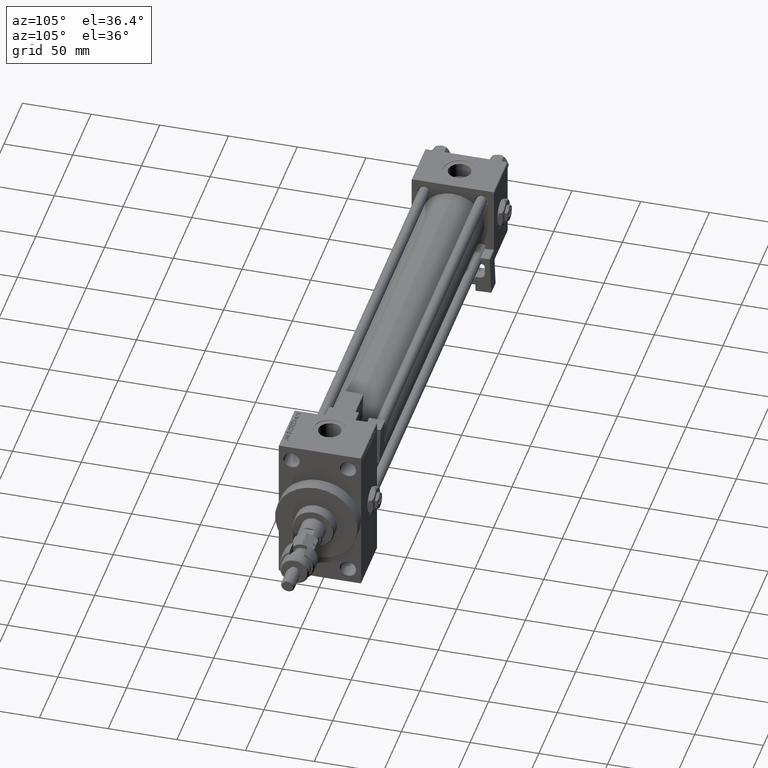
[diagram: clean part render]
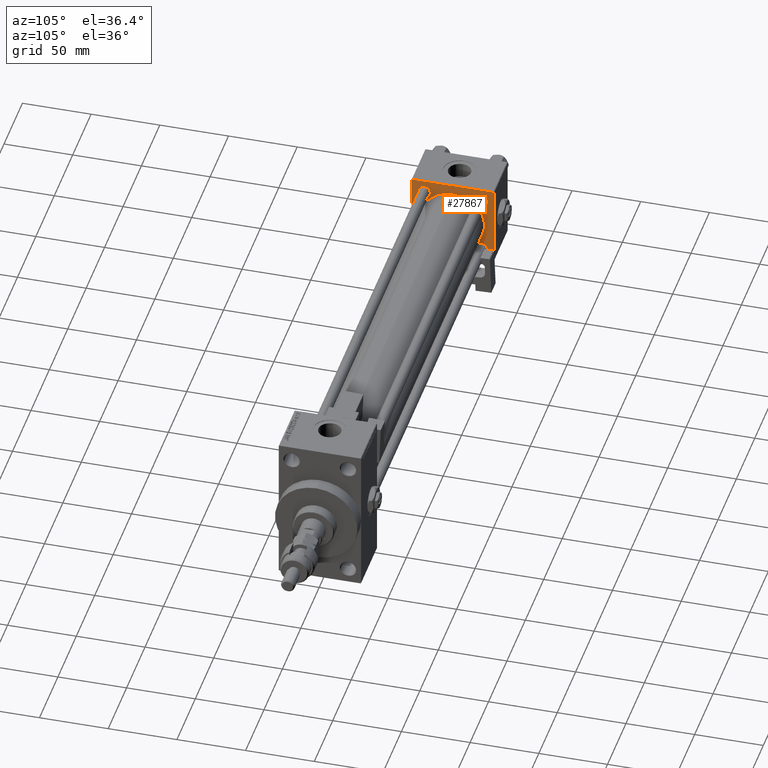
[diagram: same view with one face highlighted and labeled with its STEP entity id]
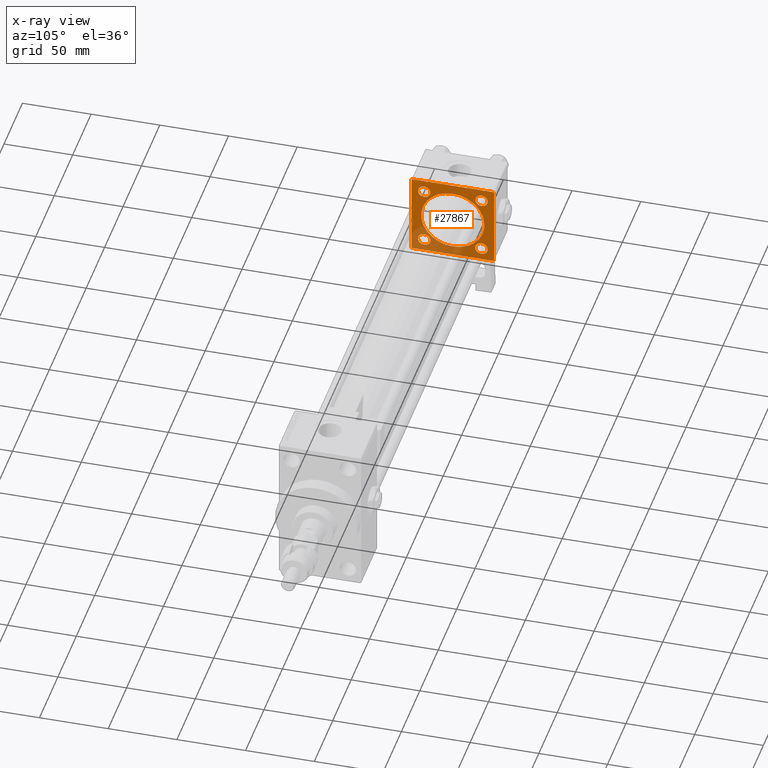
[diagram: x-ray of the same camera — body ghosted, the highlighted face saturated]
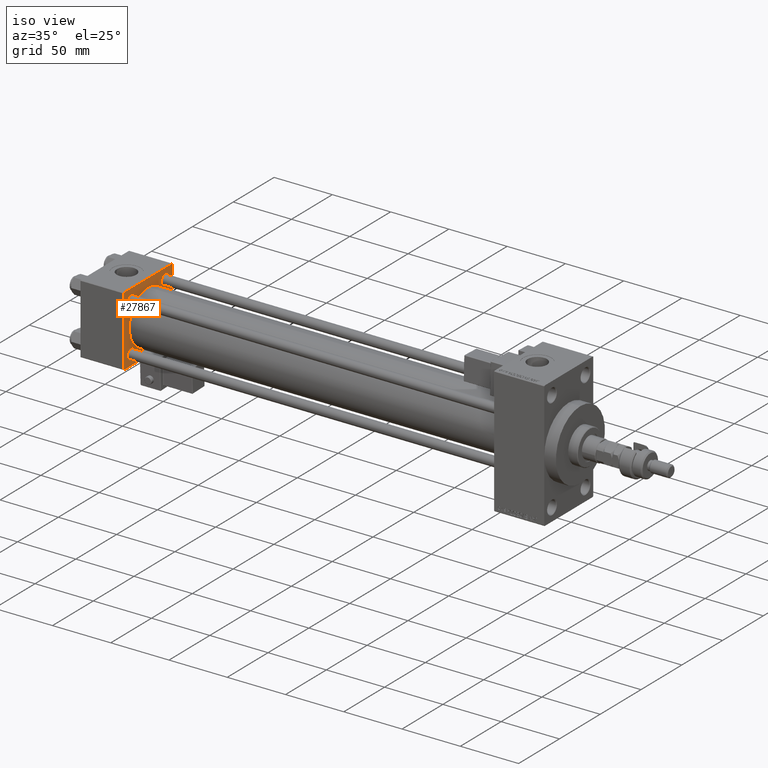
[diagram: same view with one face highlighted and labeled with its STEP entity id]
A machine part, auxiliary view. The second image highlights one B-rep face of the part: STEP entity #27867.
The next image is the same camera in x-ray: the body ghosted, the highlighted face saturated — about 27% of this face is hidden behind the body in this view.
A second angle (iso view) of the same face is appended — the face is thin or edge-on in the first view.
In plain terms, the highlighted planar face has unit normal (-1, 0, 0).
Its self-contained STEP definition (entity closure, byte-faithful):
#390 = DIRECTION ( 'NONE',  ( -1.000000000000000000, 0.000000000000000000, -0.000000000000000000 ) ) ;
#536 = CIRCLE ( 'NONE', #49642, 4.500000000000059508 ) ;
#635 = CARTESIAN_POINT ( 'NONE',  ( 37.00000000000000000, 29.99999999999999289, 30.00000000000000000 ) ) ;
#659 = CARTESIAN_POINT ( 'NONE',  ( 36.99999999999997868, -2.602085213965210642E-15, 0.000000000000000000 ) ) ;
#694 = AXIS2_PLACEMENT_3D ( 'NONE', #52681, #22477, #10665 ) ;
#780 = VERTEX_POINT ( 'NONE', #21526 ) ;
#1016 = VERTEX_POINT ( 'NONE', #32437 ) ;
#1228 = CIRCLE ( 'NONE', #2090, 4.500000000000059508 ) ;
#1545 = DIRECTION ( 'NONE',  ( 0.000000000000000000, -0.7071067811865474617, 0.7071067811865474617 ) ) ;
#2090 = AXIS2_PLACEMENT_3D ( 'NONE', #47526, #43944, #40091 ) ;
#2264 = CIRCLE ( 'NONE', #40823, 4.500000000000059508 ) ;
#2311 = CARTESIAN_POINT ( 'NONE',  ( 37.00000000000000000, 20.84999999999999787, -25.35000000000005826 ) ) ;
#2501 = DIRECTION ( 'NONE',  ( 0.000000000000000000, 0.000000000000000000, -1.000000000000000000 ) ) ;
#2979 = ORIENTED_EDGE ( 'NONE', *, *, #39996, .F. ) ;
#3033 = CIRCLE ( 'NONE', #35466, 4.500000000000059508 ) ;
#3519 = LINE ( 'NONE', #40871, #27728 ) ;
#4638 = CARTESIAN_POINT ( 'NONE',  ( 37.00000000000000000, 29.49999999999999289, 30.00000000000000000 ) ) ;
#5044 = EDGE_LOOP ( 'NONE', ( #52062, #13350 ) ) ;
#5068 = CIRCLE ( 'NONE', #694, 4.500000000000059508 ) ;
#5427 = EDGE_LOOP ( 'NONE', ( #31032, #26754, #53563, #40366, #11191, #44557, #14550, #25297 ) ) ;
#5524 = CARTESIAN_POINT ( 'NONE',  ( 37.00000000000000000, -20.84999999999999076, 25.35000000000006182 ) ) ;
#5798 = LINE ( 'NONE', #52476, #9997 ) ;
#6354 = DIRECTION ( 'NONE',  ( -0.000000000000000000, 0.000000000000000000, 1.000000000000000000 ) ) ;
#7024 = DIRECTION ( 'NONE',  ( 0.000000000000000000, 0.000000000000000000, 1.000000000000000000 ) ) ;
#7717 = DIRECTION ( 'NONE',  ( 0.000000000000000000, -1.000000000000000000, -1.156482317317871725E-16 ) ) ;
#8628 = ORIENTED_EDGE ( 'NONE', *, *, #16217, .F. ) ;
#8922 = CARTESIAN_POINT ( 'NONE',  ( 37.00000000000000000, 29.49999999999997868, -30.00000000000000000 ) ) ;
#8955 = EDGE_CURVE ( 'NONE', #13676, #16668, #33546, .T. ) ;
#9414 = DIRECTION ( 'NONE',  ( 1.000000000000000000, -0.000000000000000000, 0.000000000000000000 ) ) ;
#9842 = VERTEX_POINT ( 'NONE', #18492 ) ;
#9997 = VECTOR ( 'NONE', #2501, 1000.000000000000000 ) ;
#10201 = CARTESIAN_POINT ( 'NONE',  ( 36.99999999999997868, 2.146024240737012665E-16, -23.00000000000000000 ) ) ;
#10594 = VERTEX_POINT ( 'NONE', #32600 ) ;
#10665 = DIRECTION ( 'NONE',  ( 0.000000000000000000, 0.000000000000000000, 1.000000000000000000 ) ) ;
#10851 = LINE ( 'NONE', #44077, #13364 ) ;
#10892 = AXIS2_PLACEMENT_3D ( 'NONE', #24154, #40365, #23877 ) ;
#11191 = ORIENTED_EDGE ( 'NONE', *, *, #22021, .T. ) ;
#11355 = CARTESIAN_POINT ( 'NONE',  ( 37.00000000000000000, -30.00000000000000000, -29.50000000000001776 ) ) ;
#11587 = VERTEX_POINT ( 'NONE', #11355 ) ;
#11682 = CARTESIAN_POINT ( 'NONE',  ( 37.00000000000000000, -20.84999999999999076, -20.85000000000000497 ) ) ;
#12279 = EDGE_CURVE ( 'NONE', #39734, #37056, #23853, .T. ) ;
#12518 = VERTEX_POINT ( 'NONE', #32829 ) ;
#12561 = CARTESIAN_POINT ( 'NONE',  ( 37.00000000000000000, -29.49999999999998579, 29.99999999999999289 ) ) ;
#13350 = ORIENTED_EDGE ( 'NONE', *, *, #38365, .T. ) ;
#13364 = VECTOR ( 'NONE', #1545, 1000.000000000000114 ) ;
#13676 = VERTEX_POINT ( 'NONE', #40143 ) ;
#13778 = EDGE_CURVE ( 'NONE', #42819, #10594, #36565, .T. ) ;
#14372 = CIRCLE ( 'NONE', #10892, 23.00000000000000000 ) ;
#14550 = ORIENTED_EDGE ( 'NONE', *, *, #15884, .T. ) ;
#14931 = EDGE_CURVE ( 'NONE', #27504, #24075, #1228, .T. ) ;
#15001 = ORIENTED_EDGE ( 'NONE', *, *, #12279, .T. ) ;
#15310 = AXIS2_PLACEMENT_3D ( 'NONE', #45381, #23950, #15992 ) ;
#15884 = EDGE_CURVE ( 'NONE', #22717, #11587, #5798, .T. ) ;
#15992 = DIRECTION ( 'NONE',  ( 0.000000000000000000, 0.000000000000000000, 1.000000000000000000 ) ) ;
#16217 = EDGE_CURVE ( 'NONE', #21841, #9842, #14372, .T. ) ;
#16668 = VERTEX_POINT ( 'NONE', #31362 ) ;
#16741 = EDGE_CURVE ( 'NONE', #37056, #39734, #24967, .T. ) ;
#17263 = EDGE_CURVE ( 'NONE', #45851, #12518, #3033, .T. ) ;
#17668 = EDGE_CURVE ( 'NONE', #11587, #10594, #27052, .T. ) ;
#18492 = CARTESIAN_POINT ( 'NONE',  ( 36.99999999999997868, -2.602085213965210642E-15, 23.00000000000000000 ) ) ;
#18870 = LINE ( 'NONE', #31469, #45239 ) ;
#19173 = DIRECTION ( 'NONE',  ( -0.000000000000000000, -0.7071067811865474617, -0.7071067811865474617 ) ) ;
#19537 = CARTESIAN_POINT ( 'NONE',  ( 37.00000000000000000, 29.99999999999999289, -30.00000000000000000 ) ) ;
#19743 = VECTOR ( 'NONE', #32248, 1000.000000000000114 ) ;
#19848 = EDGE_CURVE ( 'NONE', #1016, #780, #536, .T. ) ;
#20332 = EDGE_CURVE ( 'NONE', #42819, #16668, #18870, .T. ) ;
#21526 = CARTESIAN_POINT ( 'NONE',  ( 37.00000000000000000, 20.84999999999999787, 16.34999999999994102 ) ) ;
#21841 = VERTEX_POINT ( 'NONE', #10201 ) ;
#22021 = EDGE_CURVE ( 'NONE', #53881, #26798, #44764, .T. ) ;
#22477 = DIRECTION ( 'NONE',  ( -1.000000000000000000, 0.000000000000000000, -0.000000000000000000 ) ) ;
#22717 = VERTEX_POINT ( 'NONE', #28062 ) ;
#22822 = CARTESIAN_POINT ( 'NONE',  ( 37.00000000000000000, 20.84999999999999787, -16.34999999999994102 ) ) ;
#23006 = CARTESIAN_POINT ( 'NONE',  ( 37.00000000000000000, -20.84999999999999076, -20.85000000000000497 ) ) ;
#23090 = FACE_BOUND ( 'NONE', #5044, .T. ) ;
#23249 = DIRECTION ( 'NONE',  ( -0.000000000000000000, 0.7071067811865574537, 0.7071067811865376918 ) ) ;
#23277 = DIRECTION ( 'NONE',  ( 0.000000000000000000, 0.000000000000000000, 1.000000000000000000 ) ) ;
#23424 = EDGE_CURVE ( 'NONE', #26798, #22717, #3519, .T. ) ;
#23545 = DIRECTION ( 'NONE',  ( -1.000000000000000000, 0.000000000000000000, -0.000000000000000000 ) ) ;
#23628 = PLANE ( 'NONE',  #29288 ) ;
#23853 = CIRCLE ( 'NONE', #29122, 4.500000000000059508 ) ;
#23877 = DIRECTION ( 'NONE',  ( 0.000000000000000000, 0.000000000000000000, 1.000000000000000000 ) ) ;
#23889 = DIRECTION ( 'NONE',  ( 0.000000000000000000, -1.000000000000000000, -1.156482317317871725E-16 ) ) ;
#23950 = DIRECTION ( 'NONE',  ( -1.000000000000000000, 0.000000000000000000, -0.000000000000000000 ) ) ;
#24006 = EDGE_LOOP ( 'NONE', ( #43131, #34326 ) ) ;
#24075 = VERTEX_POINT ( 'NONE', #22822 ) ;
#24154 = CARTESIAN_POINT ( 'NONE',  ( 36.99999999999997868, -2.602085213965210642E-15, 0.000000000000000000 ) ) ;
#24967 = CIRCLE ( 'NONE', #15310, 4.500000000000059508 ) ;
#25297 = ORIENTED_EDGE ( 'NONE', *, *, #17668, .T. ) ;
#25619 = DIRECTION ( 'NONE',  ( 0.000000000000000000, 0.000000000000000000, 1.000000000000000000 ) ) ;
#26754 = ORIENTED_EDGE ( 'NONE', *, *, #20332, .T. ) ;
#26798 = VERTEX_POINT ( 'NONE', #12561 ) ;
#26945 = CIRCLE ( 'NONE', #33980, 4.500000000000059508 ) ;
#27052 = LINE ( 'NONE', #31434, #19743 ) ;
#27200 = FACE_BOUND ( 'NONE', #36421, .T. ) ;
#27504 = VERTEX_POINT ( 'NONE', #2311 ) ;
#27728 = VECTOR ( 'NONE', #19173, 1000.000000000000114 ) ;
#27867 = ADVANCED_FACE ( 'NONE', ( #52227, #23090, #48640, #52492, #27200, #43975 ), #23628, .F. ) ;
#28062 = CARTESIAN_POINT ( 'NONE',  ( 37.00000000000000000, -30.00000000000000000, 29.49999999999999289 ) ) ;
#28419 = DIRECTION ( 'NONE',  ( -1.000000000000000000, 0.000000000000000000, -0.000000000000000000 ) ) ;
#28706 = CARTESIAN_POINT ( 'NONE',  ( 37.00000000000000000, 20.84999999999999787, 20.85000000000000142 ) ) ;
#29122 = AXIS2_PLACEMENT_3D ( 'NONE', #36208, #37036, #53530 ) ;
#29288 = AXIS2_PLACEMENT_3D ( 'NONE', #48365, #44509, #6354 ) ;
#30254 = EDGE_CURVE ( 'NONE', #780, #1016, #2264, .T. ) ;
#30272 = CARTESIAN_POINT ( 'NONE',  ( 37.00000000000000000, 20.84999999999999787, 20.85000000000000142 ) ) ;
#30549 = CIRCLE ( 'NONE', #38477, 23.00000000000000000 ) ;
#31032 = ORIENTED_EDGE ( 'NONE', *, *, #13778, .F. ) ;
#31362 = CARTESIAN_POINT ( 'NONE',  ( 37.00000000000000000, 29.99999999999999289, -29.50000000000000000 ) ) ;
#31434 = CARTESIAN_POINT ( 'NONE',  ( 37.00000000000000000, -29.50000000000001066, -30.00000000000000711 ) ) ;
#31469 = CARTESIAN_POINT ( 'NONE',  ( 37.00000000000000000, 29.99999999999999289, -29.50000000000000000 ) ) ;
#31553 = ORIENTED_EDGE ( 'NONE', *, *, #16741, .T. ) ;
#32248 = DIRECTION ( 'NONE',  ( 0.000000000000000000, 0.7071067811865474617, -0.7071067811865474617 ) ) ;
#32437 = CARTESIAN_POINT ( 'NONE',  ( 37.00000000000000000, 20.84999999999999787, 25.35000000000005826 ) ) ;
#32600 = CARTESIAN_POINT ( 'NONE',  ( 37.00000000000000000, -29.50000000000000000, -30.00000000000000711 ) ) ;
#32829 = CARTESIAN_POINT ( 'NONE',  ( 37.00000000000000000, -20.84999999999999076, -25.35000000000006182 ) ) ;
#33546 = LINE ( 'NONE', #635, #47433 ) ;
#33832 = DIRECTION ( 'NONE',  ( 0.000000000000000000, 0.000000000000000000, -1.000000000000000000 ) ) ;
#33980 = AXIS2_PLACEMENT_3D ( 'NONE', #11682, #28419, #46010 ) ;
#34326 = ORIENTED_EDGE ( 'NONE', *, *, #17263, .T. ) ;
#35466 = AXIS2_PLACEMENT_3D ( 'NONE', #23006, #23545, #23277 ) ;
#36208 = CARTESIAN_POINT ( 'NONE',  ( 37.00000000000000000, -20.84999999999999076, 20.85000000000000497 ) ) ;
#36421 = EDGE_LOOP ( 'NONE', ( #2979, #8628 ) ) ;
#36565 = LINE ( 'NONE', #19537, #48491 ) ;
#37036 = DIRECTION ( 'NONE',  ( -1.000000000000000000, 0.000000000000000000, -0.000000000000000000 ) ) ;
#37056 = VERTEX_POINT ( 'NONE', #5524 ) ;
#37321 = VECTOR ( 'NONE', #23889, 1000.000000000000000 ) ;
#37849 = ORIENTED_EDGE ( 'NONE', *, *, #30254, .T. ) ;
#38365 = EDGE_CURVE ( 'NONE', #24075, #27504, #5068, .T. ) ;
#38477 = AXIS2_PLACEMENT_3D ( 'NONE', #659, #9414, #46238 ) ;
#38968 = EDGE_CURVE ( 'NONE', #12518, #45851, #26945, .T. ) ;
#39734 = VERTEX_POINT ( 'NONE', #44325 ) ;
#39996 = EDGE_CURVE ( 'NONE', #9842, #21841, #30549, .T. ) ;
#40091 = DIRECTION ( 'NONE',  ( 0.000000000000000000, 0.000000000000000000, 1.000000000000000000 ) ) ;
#40143 = CARTESIAN_POINT ( 'NONE',  ( 37.00000000000000000, 29.99999999999999289, 29.50000000000000000 ) ) ;
#40365 = DIRECTION ( 'NONE',  ( 1.000000000000000000, -0.000000000000000000, 0.000000000000000000 ) ) ;
#40366 = ORIENTED_EDGE ( 'NONE', *, *, #52671, .T. ) ;
#40823 = AXIS2_PLACEMENT_3D ( 'NONE', #28706, #52916, #7024 ) ;
#40871 = CARTESIAN_POINT ( 'NONE',  ( 37.00000000000000000, -30.00000000000000000, 29.49999999999999289 ) ) ;
#42819 = VERTEX_POINT ( 'NONE', #8922 ) ;
#43131 = ORIENTED_EDGE ( 'NONE', *, *, #38968, .T. ) ;
#43944 = DIRECTION ( 'NONE',  ( -1.000000000000000000, 0.000000000000000000, -0.000000000000000000 ) ) ;
#43975 = FACE_OUTER_BOUND ( 'NONE', #5427, .T. ) ;
#44077 = CARTESIAN_POINT ( 'NONE',  ( 37.00000000000000000, 29.49999999999999289, 30.00000000000000000 ) ) ;
#44154 = EDGE_LOOP ( 'NONE', ( #15001, #31553 ) ) ;
#44325 = CARTESIAN_POINT ( 'NONE',  ( 37.00000000000000000, -20.84999999999999076, 16.34999999999994458 ) ) ;
#44509 = DIRECTION ( 'NONE',  ( -1.000000000000000000, 0.000000000000000000, -0.000000000000000000 ) ) ;
#44557 = ORIENTED_EDGE ( 'NONE', *, *, #23424, .T. ) ;
#44764 = LINE ( 'NONE', #53033, #37321 ) ;
#45239 = VECTOR ( 'NONE', #23249, 999.9999999999998863 ) ;
#45381 = CARTESIAN_POINT ( 'NONE',  ( 37.00000000000000000, -20.84999999999999076, 20.85000000000000497 ) ) ;
#45851 = VERTEX_POINT ( 'NONE', #48032 ) ;
#46010 = DIRECTION ( 'NONE',  ( 0.000000000000000000, 0.000000000000000000, 1.000000000000000000 ) ) ;
#46238 = DIRECTION ( 'NONE',  ( 0.000000000000000000, 0.000000000000000000, 1.000000000000000000 ) ) ;
#47433 = VECTOR ( 'NONE', #33832, 1000.000000000000000 ) ;
#47526 = CARTESIAN_POINT ( 'NONE',  ( 37.00000000000000000, 20.84999999999999787, -20.85000000000000142 ) ) ;
#48032 = CARTESIAN_POINT ( 'NONE',  ( 37.00000000000000000, -20.84999999999999076, -16.34999999999994458 ) ) ;
#48365 = CARTESIAN_POINT ( 'NONE',  ( 37.00000000000000000, 0.000000000000000000, 0.000000000000000000 ) ) ;
#48491 = VECTOR ( 'NONE', #7717, 1000.000000000000000 ) ;
#48640 = FACE_BOUND ( 'NONE', #44154, .T. ) ;
#49642 = AXIS2_PLACEMENT_3D ( 'NONE', #30272, #390, #25619 ) ;
#52062 = ORIENTED_EDGE ( 'NONE', *, *, #14931, .T. ) ;
#52227 = FACE_BOUND ( 'NONE', #24006, .T. ) ;
#52476 = CARTESIAN_POINT ( 'NONE',  ( 37.00000000000000000, -30.00000000000000000, 29.99999999999999289 ) ) ;
#52492 = FACE_BOUND ( 'NONE', #52869, .T. ) ;
#52671 = EDGE_CURVE ( 'NONE', #13676, #53881, #10851, .T. ) ;
#52681 = CARTESIAN_POINT ( 'NONE',  ( 37.00000000000000000, 20.84999999999999787, -20.85000000000000142 ) ) ;
#52869 = EDGE_LOOP ( 'NONE', ( #37849, #53894 ) ) ;
#52916 = DIRECTION ( 'NONE',  ( -1.000000000000000000, 0.000000000000000000, -0.000000000000000000 ) ) ;
#53033 = CARTESIAN_POINT ( 'NONE',  ( 37.00000000000000000, 29.99999999999999289, 30.00000000000000000 ) ) ;
#53530 = DIRECTION ( 'NONE',  ( 0.000000000000000000, 0.000000000000000000, 1.000000000000000000 ) ) ;
#53563 = ORIENTED_EDGE ( 'NONE', *, *, #8955, .F. ) ;
#53881 = VERTEX_POINT ( 'NONE', #4638 ) ;
#53894 = ORIENTED_EDGE ( 'NONE', *, *, #19848, .T. ) ;